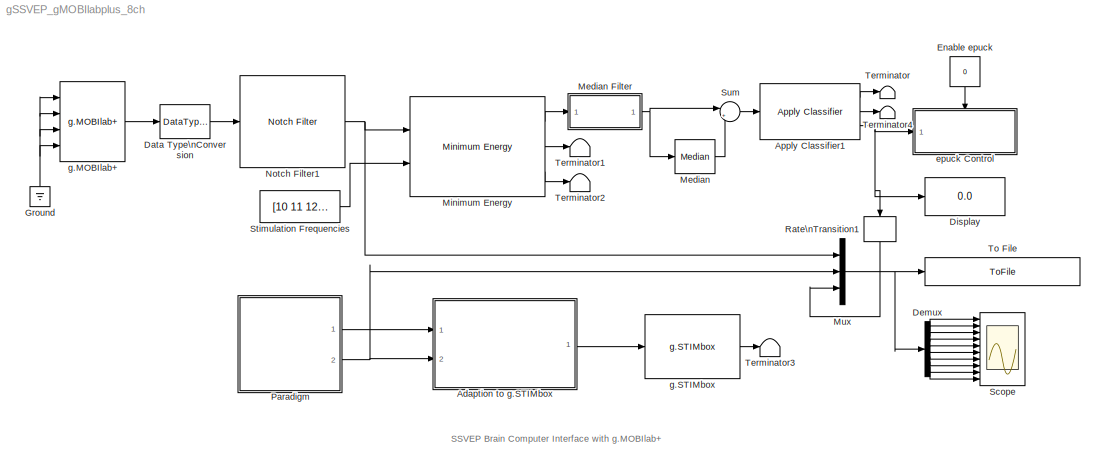
MODEL gSSVEP_gMOBIlabplus_8ch
KIND model
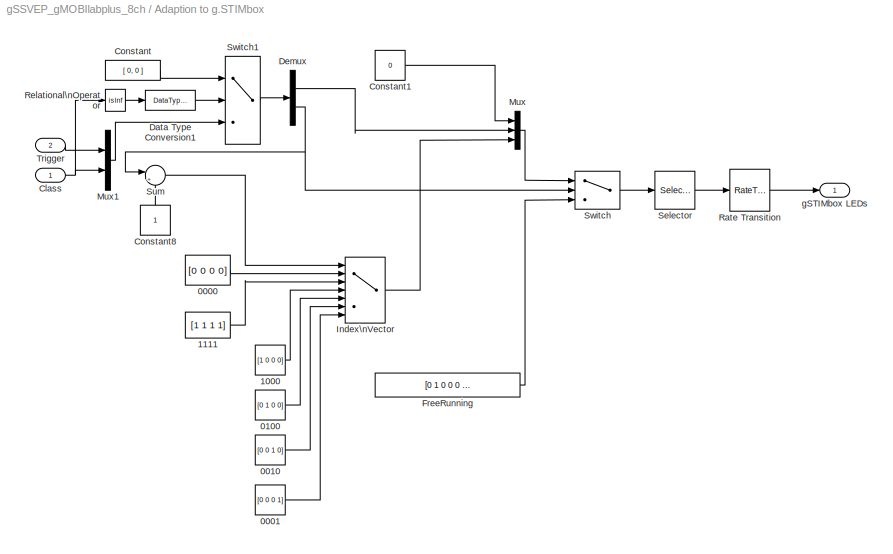
BLOCK [SubSystem] Adaption to g.STIMbox
  FunctionWithSeparateData = off
  MaskHideContents = off
  MinAlgLoopOccurrences = on
  Opaque = off
  Ports = [2, 1]
  PropExecContextOutsideSubsystem = off
  RTWSystemCode = Auto
  RequestExecContextInheritance = off
  SID = 67
BLOCK [Constant] Adaption to g.STIMbox/0000
  SID = 70
  SampleTime = 1/256
  Value = [0 0 0 0]
BLOCK [Constant] Adaption to g.STIMbox/0001
  SID = 71
  SampleTime = 1/256
  Value = [0 0 0 1]
BLOCK [Constant] Adaption to g.STIMbox/0010
  SID = 72
  SampleTime = 1/256
  Value = [0 0 1 0]
BLOCK [Constant] Adaption to g.STIMbox/0100
  SID = 73
  SampleTime = 1/256
  Value = [0 1 0 0]
BLOCK [Constant] Adaption to g.STIMbox/1000
  SID = 74
  SampleTime = 1/256
  Value = [1 0 0 0]
BLOCK [Constant] Adaption to g.STIMbox/1111
  SID = 75
  SampleTime = 1/256
  Value = [1 1 1 1]
BLOCK [Inport] Adaption to g.STIMbox/Class
  IconDisplay = Port number
  SID = 68
BLOCK [Constant] Adaption to g.STIMbox/Constant
  SID = 76
  Value = [ 0, 0 ]
BLOCK [Constant] Adaption to g.STIMbox/Constant1
  SID = 77
  SampleTime = 1/256
  Value = 0
BLOCK [Constant] Adaption to g.STIMbox/Constant8
  SID = 78
  SampleTime = 1/256
BLOCK [DataTypeConversion] Adaption to g.STIMbox/Data Type Conversion1
  RndMeth = Floor
  SID = 79
  SaturateOnIntegerOverflow = off
BLOCK [Demux] Adaption to g.STIMbox/Demux
  DisplayOption = bar
  Outputs = 2
  Ports = [1, 2]
  SID = 80
BLOCK [Constant] Adaption to g.STIMbox/FreeRunning
  SID = 81
  SampleTime = 1/256
  Value = [0 1 0 0 0 0]
BLOCK [MultiPortSwitch] Adaption to g.STIMbox/Index\nVector
  DataPortOrder = Zero-based contiguous
  InputSameDT = off
  Inputs = 6
  Ports = [7, 1]
  SID = 82
  SaturateOnIntegerOverflow = off
  zeroidx = on
BLOCK [Mux] Adaption to g.STIMbox/Mux
  DisplayOption = bar
  Inputs = 3
  Ports = [3, 1]
  SID = 83
BLOCK [Mux] Adaption to g.STIMbox/Mux1
  DisplayOption = bar
  Inputs = 2
  Ports = [2, 1]
  SID = 84
BLOCK [RateTransition] Adaption to g.STIMbox/Rate Transition
  SID = 85
BLOCK [RelationalOperator] Adaption to g.STIMbox/Relational\nOperator
  InputSameDT = off
  Operator = isInf
  OutDataTypeStr = boolean
  Ports = [1, 1]
  SID = 86
BLOCK [Selector] Adaption to g.STIMbox/Selector
  IndexOptions = Index vector (dialog)
  Indices = [ones(1,8) 2 3 2 4 2 5 2 6]
  InputPortWidth = 6
  OutputSizes = 1
  Ports = [1, 1]
  SID = 87
BLOCK [Sum] Adaption to g.STIMbox/Sum
  IconShape = round
  InputSameDT = off
  Inputs = |++
  OutDataTypeStr = Inherit: Inherit via internal rule
  Ports = [2, 1]
  SID = 88
  SaturateOnIntegerOverflow = off
BLOCK [Switch] Adaption to g.STIMbox/Switch
  InputSameDT = off
  SID = 89
  SaturateOnIntegerOverflow = off
BLOCK [Switch] Adaption to g.STIMbox/Switch1
  Criteria = u2 > Threshold
  InputSameDT = off
  SID = 90
  SaturateOnIntegerOverflow = off
BLOCK [Inport] Adaption to g.STIMbox/Trigger
  IconDisplay = Port number
  Port = 2
  SID = 69
BLOCK [Outport] Adaption to g.STIMbox/gSTIMbox LEDs
  IconDisplay = Port number
  SID = 91
BLOCK [Reference] Apply Classifier1  REF=gRTanalyze/Apply Classifier
  Ports = [1, 3]
  SID = 63
  SourceBlock = gRTanalyze/Apply Classifier
  SourceType = Source Derivations
  UserData = DataTag0
  UserDataPersistent = on
BLOCK [DataTypeConversion] Data Type\nConversion
  OutDataTypeStr = double
  RndMeth = Floor
  SID = 21
  SaturateOnIntegerOverflow = off
BLOCK [Demux] Demux
  DisplayOption = bar
  Outputs = 10
  Ports = [1, 10]
  SID = 22
BLOCK [Display] Display
  Decimation = 1
  Lockdown = off
  Ports = [1]
  SID = 23
BLOCK [Constant] Enable epuck
  SID = 24
  Value = 0
BLOCK [Ground] Ground
  SID = 25
BLOCK [Reference] Median  REF=dspstat3/Median
  LockScale = off
  Ports = [1, 1]
  SID = 60
  SourceBlock = dspstat3/Median
  SourceType = Median
  accumDataTypeStr = Inherit: Same as product output
  accumFracLength = 30
  accumLastDataTypeStr = Inherit: Same as product output
  accumMode = Same as product output
  accumWordLength = 32
  additionalParams = off
  allowOverrides = off
  dimension = 1
  directionMode = Entire input
  outputDataTypeStr = Inherit: Same as accumulator
  outputFracLength = 15
  outputLastDataTypeStr = Inherit: Same as accumulator
  outputMax = []
  outputMin = []
  outputMode = Same as accumulator
  outputWordLength = 16
  overflowMode = off
  prodOutputDataTypeStr = Inherit: Same as input
  prodOutputFracLength = 30
  prodOutputLastDataTypeStr = Inherit: Same as input
  prodOutputMode = Same as input
  prodOutputWordLength = 32
  roundingMode = Floor
  sortAlg = Quick sort
  treatSBRowAsCol = on
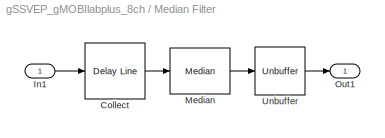
BLOCK [SubSystem] Median Filter
  FunctionWithSeparateData = off
  MaskDescription = Smoothes the input channels over time by computing the median value for \nthe specified number of samples.
  MaskEnableString = on
  MaskHelp = Smoothes the input channels over time by computing the median value for \nthe specified number of samples.\n\nFilter Length ... The length of the smoothing window in samples. (Default 10)
  MaskHideContents = off
  MaskIconFrame = on
  MaskIconOpaque = on
  MaskIconRotate = none
  MaskIconUnits = autoscale
  MaskInitialization = blockhandle = get_param(gcb,'Handle');\nsysname = get(blockhandle,'Path');\nsyspath = [ sysname '/' ];\nname = [ syspath get(blockhandle,'Name') ];\npath = [ name '/' ];\nif buflen < 3\n  buflen = 10;\n  set_param(name,'buflen',num2str(buflen));\nend\nset_param([ path 'Collect'],'siz',num2str(buflen));\ntry\n  set_param([ path 'Collect'],'TreatMby1Signals','M channels (this choice will be removed ...<+35ch>
  MaskPortRotate = default
  MaskPromptString = Filter Length
  MaskStyleString = edit
  MaskToolTipString = on
  MaskTunableValueString = off
  MaskType = Moving Median Filter
  MaskValueString = 10
  MaskVariables = buflen=@1;
  MaskVisibilityString = on
  MinAlgLoopOccurrences = off
  Opaque = off
  Ports = [1, 1]
  PropExecContextOutsideSubsystem = off
  RTWSystemCode = Auto
  RequestExecContextInheritance = off
  SID = 54
BLOCK [Reference] Median Filter/Collect  REF=dspbuff3/Delay Line
  Ports = [1, 1]
  SID = 56
  SourceBlock = dspbuff3/Delay Line
  SourceType = Delay Line
  TreatMby1Signals = M channels (this choice will be removed - see release notes)
  UserData = DataTag1
  UserDataPersistent = on
  directfeed = on
  enable_output = off
  hold_output = off
  ic = 0
  siz = 10
BLOCK [Inport] Median Filter/In1
  IconDisplay = Port number
  SID = 55
BLOCK [Reference] Median Filter/Median  REF=dspstat3/Median
  LockScale = off
  Ports = [1, 1]
  SID = 57
  SourceBlock = dspstat3/Median
  SourceType = Median
  accumDataTypeStr = Inherit: Same as product output
  accumFracLength = 30
  accumLastDataTypeStr = Inherit: Same as product output
  accumMode = Same as product output
  accumWordLength = 32
  additionalParams = off
  allowOverrides = off
  dimension = 1
  directionMode = Specified dimension
  outputDataTypeStr = Inherit: Same as accumulator
  outputFracLength = 15
  outputLastDataTypeStr = Inherit: Same as accumulator
  outputMax = []
  outputMin = []
  outputMode = Same as accumulator
  outputWordLength = 16
  overflowMode = off
  prodOutputDataTypeStr = Inherit: Same as input
  prodOutputFracLength = 30
  prodOutputLastDataTypeStr = Inherit: Same as input
  prodOutputMode = Same as input
  prodOutputWordLength = 32
  roundingMode = Floor
  sortAlg = Quick sort
  treatSBRowAsCol = on
BLOCK [Outport] Median Filter/Out1
  IconDisplay = Port number
  SID = 59
BLOCK [Unbuffer] Median Filter/Unbuffer
  Ports = [1, 1]
  SID = 62
BLOCK [Reference] Minimum Energy  REF=gRTanalyze/Minimum Energy
  Ports = [2, 3]
  SID = 32
  SourceBlock = gRTanalyze/Minimum Energy
  SourceType = SSVEP Minimum Energy
  UserData = DataTag2
  UserDataPersistent = on
  bufflen = 768
  modelorder = 7
  numharmonics = 1
  reprate = 0.20
BLOCK [Mux] Mux
  DisplayOption = bar
  Inputs = 3
  Ports = [3, 1]
  SID = 33
BLOCK [Reference] Notch Filter1  REF=gMOBIlab/Notch Filter
  Ports = [1, 1]
  SID = 34
  SourceBlock = gMOBIlab/Notch Filter
  SourceType = Notch Filter
  notch = 50Hz
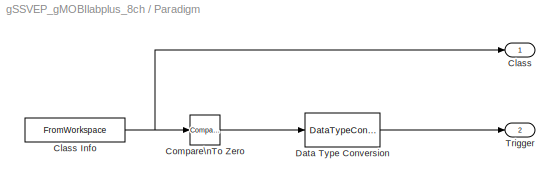
BLOCK [SubSystem] Paradigm
  FunctionWithSeparateData = off
  MaskCallbackString = |  |||
  MaskEnableString = on,on,on,on,on
  MaskHideContents = off
  MaskIconFrame = on
  MaskIconOpaque = on
  MaskIconRotate = none
  MaskIconUnits = autoscale
  MaskInitialization = blockhandle = get_param(gcb,'Handle');\nsysname = get(blockhandle,'Path');\nsyspath = [ sysname '/' ];\nname = [ syspath get(blockhandle,'Name') ];\npath = [ name '/' ];\nrootsys = bdroot(name);\n\nif ~strcmp(get_param(rootsys, 'SolverType'),'Fixed-step')\n        set_param(rootsys, 'SolverType','Fixed-step');\nend\n        \nstepsize = get_param(rootsys,'FixedStep');\nif strcmp(stepsize,'auto')\n...<+2158ch>
  MaskPortRotate = default
  MaskPromptString = Class Info File|Mode|Trial Period [s] (>= 8s)|Active Part [%]|Initial Offset [s] (>= 10s)
  MaskStyleString = edit,popup(Training Paradigm|Paradigm with feedback|Free running),edit,edit,edit
  MaskToolTipString = on,on,on,on,on
  MaskTunableValueString = off,off,off,off,off
  MaskValueString = classinfo_20tr.m|Training Paradigm|10.5|70|10
  MaskVariables = classinfo=&1;mode=@2;trialperiod=@3;activepart=@4;initialoffset=@5;
  MaskVisibilityString = on,on,on,on,on
  MinAlgLoopOccurrences = on
  Opaque = off
  Ports = [0, 2]
  PropExecContextOutsideSubsystem = off
  RTWSystemCode = Auto
  RequestExecContextInheritance = off
  SID = 35
BLOCK [Outport] Paradigm/Class
  IconDisplay = Port number
  InitialOutput = 0
  SID = 39
BLOCK [FromWorkspace] Paradigm/Class Info
  Interpolate = off
  OutputAfterFinalValue = Holding final value
  SID = 36
  SampleTime = 1/256
  VariableName = paradigmDrivePattern
  ZeroCross = on
BLOCK [Reference] Paradigm/Compare\nTo Zero  REF=simulink/Logic and Bit\nOperations/Compare\nTo Zero
  OutDataTypeStr = uint8
  Ports = [1, 1]
  SID = 37
  SourceBlock = simulink/Logic and Bit\nOperations/Compare\nTo Zero
  SourceType = Compare To Zero
  ZeroCross = off
  relop = >
BLOCK [DataTypeConversion] Paradigm/Data Type Conversion
  RndMeth = Floor
  SID = 38
  SaturateOnIntegerOverflow = off
BLOCK [Outport] Paradigm/Trigger
  IconDisplay = Port number
  InitialOutput = 0
  Port = 2
  SID = 40
BLOCK [RateTransition] Rate\nTransition1
  SID = 41
BLOCK [Scope] Scope
  DataFormat = StructureWithTime
  Floating = off
  NumInputPorts = 10
  Ports = [10]
  SID = 42
  SampleTime = 0
  ShowLegends = off
  TickLabels = off
  TimeRange = 15
  YMax = 50~50~50~50~50~50~50~50~2~5
  YMin = -50~-50~-50~-50~-50~-50~-50~-50~-1~0
BLOCK [Constant] Stimulation Frequencies
  SID = 43
  SampleTime = 1/256
  Value = [10  11  12  13]
BLOCK [Sum] Sum
  IconShape = round
  InputSameDT = off
  Inputs = |+-
  OutDataTypeStr = Inherit: Inherit via internal rule
  Ports = [2, 1]
  SID = 61
  SaturateOnIntegerOverflow = off
BLOCK [Terminator] Terminator
  SID = 64
BLOCK [Terminator] Terminator1
  SID = 44
BLOCK [Terminator] Terminator2
  SID = 45
BLOCK [Terminator] Terminator3
  SID = 46
BLOCK [Terminator] Terminator4
  SID = 65
BLOCK [ToFile] To File
  Filename = training_session1.mat
  MatrixName = y
  Ports = [1]
  SID = 47
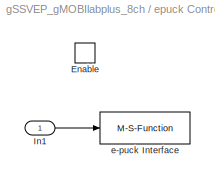
BLOCK [SubSystem] epuck Control
  FunctionWithSeparateData = off
  MaskEnableString = on
  MaskHideContents = off
  MaskIconFrame = on
  MaskIconOpaque = on
  MaskIconRotate = none
  MaskIconUnits = autoscale
  MaskPortRotate = default
  MaskPromptString = Com - Port (COMxx)
  MaskStyleString = edit
  MaskToolTipString = on
  MaskTunableValueString = on
  MaskValueString = 'com30'
  MaskVariables = com=@1;
  MaskVisibilityString = on
  MinAlgLoopOccurrences = off
  Opaque = off
  Ports = [1, 0, 1]
  PropExecContextOutsideSubsystem = off
  RTWSystemCode = Auto
  RequestExecContextInheritance = off
  SID = 48
  TreatAsAtomicUnit = on
BLOCK [EnablePort] epuck Control/Enable
  Ports = []
  PropagateVarSize = During execution
  SID = 50
BLOCK [Inport] epuck Control/In1
  IconDisplay = Port number
  SID = 49
BLOCK [M-S-Function] epuck Control/e-puck Interface
  FunctionName = eInterface2
  MaskCallbackString = |||||||
  MaskDescription = Speed from 0 to 1000;\nIf Acceleration [cm/s] equal 0, then speed of robot = vmin;\nForward, Backward, Left, Right and Stop have to have different numbers;
  MaskDisplay = port_label('input', 1, 'Command')
  MaskEnableString = on,on,on,on,on,on,on,on
  MaskIconFrame = on
  MaskIconOpaque = on
  MaskIconRotate = none
  MaskIconUnits = autoscale
  MaskPortRotate = default
  MaskPromptString = Forward |Backward|Left|Right|Stop|max. Speed|min. Speed|Acceleration
  MaskStyleString = edit,edit,edit,edit,edit,edit,edit,edit
  MaskToolTipString = on,on,on,on,on,on,on,on
  MaskTunableValueString = off,off,off,off,off,off,off,off
  MaskType = Paramteters
  MaskValueString = 2|4|1|3|0|300|50|1
  MaskVariables = f=@1;b=@2;l=@3;r=@4;s=@5;vmax=@6;vmin=@7;a=@8;
  MaskVisibilityString = on,on,on,on,on,on,on,on
  Parameters = f b l r s com vmax vmin a
  Ports = [1]
  SID = 51
BLOCK [Reference] g.MOBIlab+  REF=gMOBIlab/g.MOBIlab+
  NoCh1 = 50 Hz
  NoCh2 = 50 Hz
  NoCh3 = 50 Hz
  NoCh4 = 50 Hz
  NoCh5 = 50 Hz
  NoCh6 = 50 Hz
  NoCh7 = 50 Hz
  NoCh8 = 50 Hz
  Ports = [4, 1]
  SDflag = off
  SID = 52
  SourceBlock = gMOBIlab/g.MOBIlab+
  SourceType = g.MOBIlab +
  analog_channel1 = on
  analog_channel2 = on
  analog_channel3 = on
  analog_channel4 = on
  analog_channel5 = on
  analog_channel6 = on
  analog_channel7 = on
  analog_channel8 = on
  dio1 = OFF
  dio2 = OFF
  dio3 = OFF
  dio4 = OFF
  dio5 = OFF
  dio6 = OFF
  dio7 = OFF
  dio8 = OFF
  filename = 'GMOBILAB'
  max_delay = 10000
  port = COM1:
  testmode = off
BLOCK [Reference] g.STIMbox  REF=gSTIMboxlib/g.STIMbox
  Ports = [1, 1]
  SID = 53
  SourceBlock = gSTIMboxlib/g.STIMbox
  bm = 0
  chfreqs = [1   1   1   1   1   1   1   1  10   1  11   1  12   1  13   1]
  chinv = [0  0  0  0  0  0  0  0  0  0  0  0  0  0]
  chmodes = [0  0  0  0  0  0  0  0  1  0  1  0  1  0  1  0]
  comport = 18
  fl = 1
  fs = 1
  ia = 1
  sr = 32
ANNOTATION (root): SSVEP Brain Computer Interface with g.MOBIlab+
LINE Adaption to g.STIMbox/0000:1 -> Adaption to g.STIMbox/Index\nVector:2
LINE Adaption to g.STIMbox/0001:1 -> Adaption to g.STIMbox/Index\nVector:7
LINE Adaption to g.STIMbox/0010:1 -> Adaption to g.STIMbox/Index\nVector:6
LINE Adaption to g.STIMbox/0100:1 -> Adaption to g.STIMbox/Index\nVector:5
LINE Adaption to g.STIMbox/1000:1 -> Adaption to g.STIMbox/Index\nVector:4
LINE Adaption to g.STIMbox/1111:1 -> Adaption to g.STIMbox/Index\nVector:3
NET Adaption to g.STIMbox/Class:1 -> Adaption to g.STIMbox/Mux1:2, Adaption to g.STIMbox/Relational\nOperator:1
LINE Adaption to g.STIMbox/Constant1:1 -> Adaption to g.STIMbox/Mux:1
LINE Adaption to g.STIMbox/Constant8:1 -> Adaption to g.STIMbox/Sum:2
LINE Adaption to g.STIMbox/Constant:1 -> Adaption to g.STIMbox/Switch1:1
LINE Adaption to g.STIMbox/Data Type Conversion1:1 -> Adaption to g.STIMbox/Switch1:2
LINE Adaption to g.STIMbox/Demux:1 -> Adaption to g.STIMbox/Mux:2
NET Adaption to g.STIMbox/Demux:2 -> Adaption to g.STIMbox/Sum:1, Adaption to g.STIMbox/Switch:2
LINE Adaption to g.STIMbox/FreeRunning:1 -> Adaption to g.STIMbox/Switch:3
LINE Adaption to g.STIMbox/Index\nVector:1 -> Adaption to g.STIMbox/Mux:3
LINE Adaption to g.STIMbox/Mux1:1 -> Adaption to g.STIMbox/Switch1:3
LINE Adaption to g.STIMbox/Mux:1 -> Adaption to g.STIMbox/Switch:1
LINE Adaption to g.STIMbox/Rate Transition:1 -> Adaption to g.STIMbox/gSTIMbox LEDs:1
LINE Adaption to g.STIMbox/Relational\nOperator:1 -> Adaption to g.STIMbox/Data Type Conversion1:1
LINE Adaption to g.STIMbox/Selector:1 -> Adaption to g.STIMbox/Rate Transition:1
LINE Adaption to g.STIMbox/Sum:1 -> Adaption to g.STIMbox/Index\nVector:1
LINE Adaption to g.STIMbox/Switch1:1 -> Adaption to g.STIMbox/Demux:1
LINE Adaption to g.STIMbox/Switch:1 -> Adaption to g.STIMbox/Selector:1
LINE Adaption to g.STIMbox/Trigger:1 -> Adaption to g.STIMbox/Mux1:1
LINE Adaption to g.STIMbox:1 -> g.STIMbox:1
LINE Apply Classifier1:1 -> Terminator:1
LINE Apply Classifier1:2 -> Terminator4:1
NET Apply Classifier1:3 -> Display:1, Rate\nTransition1:1, epuck Control:1
LINE Data Type\nConversion:1 -> Notch Filter1:1
LINE Demux:1 -> Scope:1
LINE Demux:10 -> Scope:10
LINE Demux:2 -> Scope:2
LINE Demux:3 -> Scope:3
LINE Demux:4 -> Scope:4
LINE Demux:5 -> Scope:5
LINE Demux:6 -> Scope:6
LINE Demux:7 -> Scope:7
LINE Demux:8 -> Scope:8
LINE Demux:9 -> Scope:9
LINE Enable epuck:1 -> epuck Control:enable
NET Ground:1 -> g.MOBIlab+:1, g.MOBIlab+:2, g.MOBIlab+:3, g.MOBIlab+:4
LINE Median Filter/Collect:1 -> Median Filter/Median:1
LINE Median Filter/In1:1 -> Median Filter/Collect:1
LINE Median Filter/Median:1 -> Median Filter/Unbuffer:1
LINE Median Filter/Unbuffer:1 -> Median Filter/Out1:1
NET Median Filter:1 -> Median:1, Sum:1
LINE Median:1 -> Sum:2
LINE Minimum Energy:1 -> Median Filter:1
LINE Minimum Energy:2 -> Terminator1:1
LINE Minimum Energy:3 -> Terminator2:1
NET Mux:1 -> Demux:1, To File:1
NET Notch Filter1:1 -> Minimum Energy:1, Mux:1
NET Paradigm/Class Info:1 -> Paradigm/Class:1, Paradigm/Compare\nTo Zero:1
LINE Paradigm/Compare\nTo Zero:1 -> Paradigm/Data Type Conversion:1
LINE Paradigm/Data Type Conversion:1 -> Paradigm/Trigger:1
LINE Paradigm:1 -> Adaption to g.STIMbox:1
NET Paradigm:2 -> Adaption to g.STIMbox:2, Mux:2
LINE Rate\nTransition1:1 -> Mux:3
LINE Stimulation Frequencies:1 -> Minimum Energy:2
LINE Sum:1 -> Apply Classifier1:1
LINE epuck Control/In1:1 -> epuck Control/e-puck Interface:1
LINE g.MOBIlab+:1 -> Data Type\nConversion:1
LINE g.STIMbox:1 -> Terminator3:1
note: NET lines group one-source signal fan-out (src -> all destinations, sorted); 1:1 wires keep LINE
